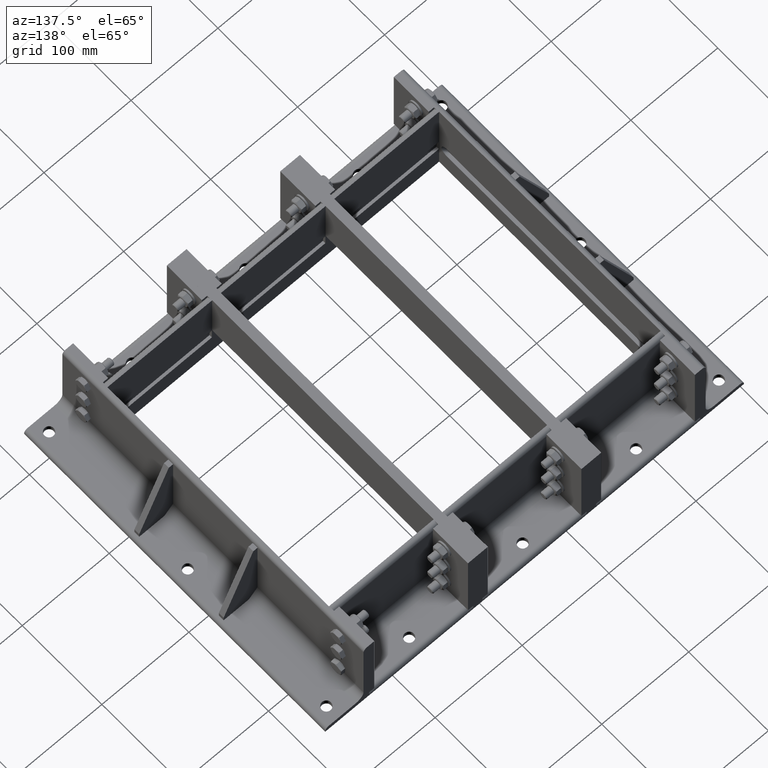
[diagram: clean part render]
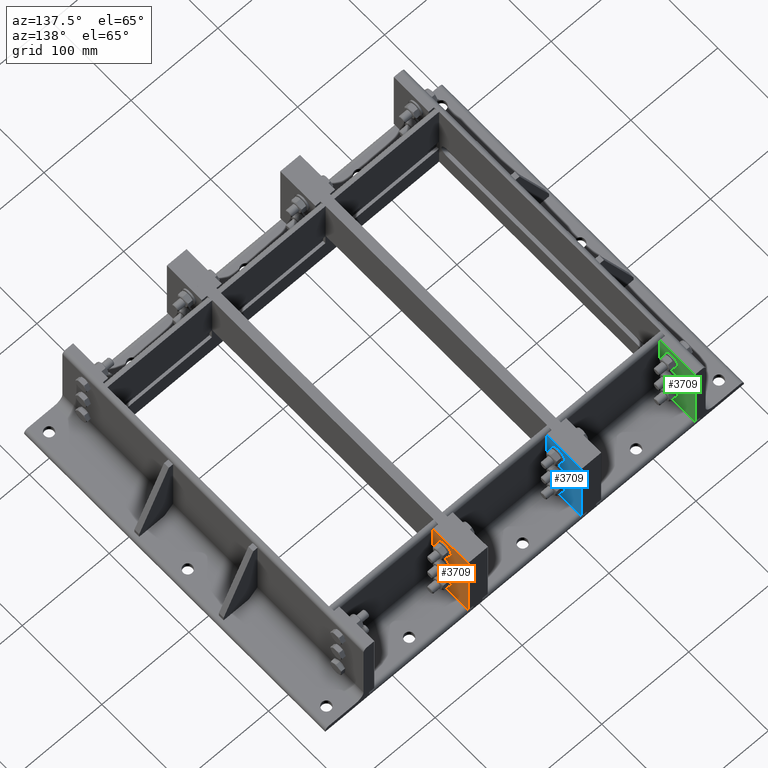
[diagram: same view with three faces highlighted in distinct colors, each labeled with its STEP entity id]
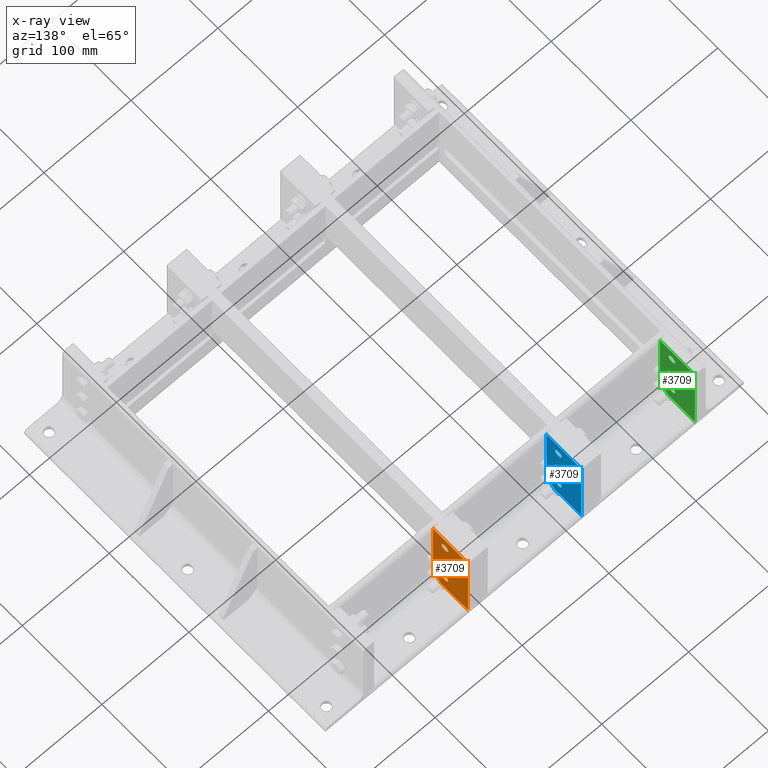
[diagram: x-ray of the same camera — body ghosted, the three highlighted faces saturated]
A machine part, auxiliary view with three faces highlighted in distinct colors.
The next image is the same camera in x-ray (body ghosted, the three faces saturated) — at least one of them is partly hidden behind the body in this view.
Their STEP definitions:

[orange] entity #3709 — the highlighted planar face has unit normal (1, -0, -0).
#3432=CARTESIAN_POINT('',(6.250000000000007,0.0,7.000000000000004));
#3433=VERTEX_POINT('',#3432);
#3434=CARTESIAN_POINT('',(2.000000000000006,0.0,7.000000000000004));
#3435=DIRECTION('',(0.0,1.0,0.0));
#3436=DIRECTION('',(-1.0,0.0,0.0));
#3437=AXIS2_PLACEMENT_3D('',#3434,#3435,#3436);
#3438=CIRCLE('',#3437,4.25);
#3439=EDGE_CURVE('',#3433,#3433,#3438,.T.);
#3460=CARTESIAN_POINT('',(-23.749999999999993,-1.110223E-015,7.000000000000002));
#3461=VERTEX_POINT('',#3460);
#3462=CARTESIAN_POINT('',(-27.999999999999993,0.0,7.000000000000002));
#3463=DIRECTION('',(0.0,1.0,0.0));
#3464=DIRECTION('',(-1.0,0.0,0.0));
#3465=AXIS2_PLACEMENT_3D('',#3462,#3463,#3464);
#3466=CIRCLE('',#3465,4.250000000000001);
#3467=EDGE_CURVE('',#3461,#3461,#3466,.T.);
#3488=CARTESIAN_POINT('',(36.250000000000007,2.220446E-015,7.000000000000004));
#3489=VERTEX_POINT('',#3488);
#3490=CARTESIAN_POINT('',(32.000000000000007,0.0,7.000000000000004));
#3491=DIRECTION('',(0.0,1.0,0.0));
#3492=DIRECTION('',(-1.0,0.0,0.0));
#3493=AXIS2_PLACEMENT_3D('',#3490,#3491,#3492);
#3494=CIRCLE('',#3493,4.25);
#3495=EDGE_CURVE('',#3489,#3489,#3494,.T.);
#3526=CARTESIAN_POINT('',(-46.999999999999993,0.0,12.000000000000002));
#3527=VERTEX_POINT('',#3526);
#3534=CARTESIAN_POINT('',(-36.999999999999993,0.0,22.0));
#3535=VERTEX_POINT('',#3534);
#3536=CARTESIAN_POINT('',(-46.999999999999993,-2.609024E-015,11.999999999999995));
#3537=DIRECTION('',(0.707106781186548,3.925231E-017,0.707106781186547));
#3538=VECTOR('',#3537,14.142135623730956);
#3539=LINE('',#3536,#3538);
#3540=EDGE_CURVE('',#3527,#3535,#3539,.T.);
#3605=CARTESIAN_POINT('',(47.000000000000014,0.0,22.0));
#3606=VERTEX_POINT('',#3605);
#3607=CARTESIAN_POINT('',(47.000000000000014,0.0,22.0));
#3608=DIRECTION('',(-1.0,0.0,0.0));
#3609=VECTOR('',#3608,84.0);
#3610=LINE('',#3607,#3609);
#3611=EDGE_CURVE('',#3606,#3535,#3610,.T.);
#3630=CARTESIAN_POINT('',(-47.000000000000014,0.0,-21.999999999999996));
#3631=VERTEX_POINT('',#3630);
#3638=CARTESIAN_POINT('',(-47.0,0.0,12.0));
#3639=DIRECTION('',(0.0,0.0,-1.0));
#3640=VECTOR('',#3639,34.0);
#3641=LINE('',#3638,#3640);
#3642=EDGE_CURVE('',#3527,#3631,#3641,.T.);
#3652=CARTESIAN_POINT('',(46.999999999999993,0.0,-22.000000000000011));
#3653=VERTEX_POINT('',#3652);
#3654=CARTESIAN_POINT('',(-47.000000000000014,0.0,-21.999999999999996));
#3655=DIRECTION('',(1.0,0.0,0.0));
#3656=VECTOR('',#3655,94.0);
#3657=LINE('',#3654,#3656);
#3658=EDGE_CURVE('',#3631,#3653,#3657,.T.);
#3676=CARTESIAN_POINT('',(46.999999999999993,0.0,-22.000000000000011));
#3677=DIRECTION('',(0.0,0.0,1.0));
#3678=VECTOR('',#3677,44.000000000000014);
#3679=LINE('',#3676,#3678);
#3680=EDGE_CURVE('',#3653,#3606,#3679,.T.);
#3688=CARTESIAN_POINT('',(9.654113E-016,0.0,-7.079683E-016));
#3689=DIRECTION('',(0.0,-1.0,0.0));
#3690=DIRECTION('',(0.0,0.0,-1.0));
#3691=AXIS2_PLACEMENT_3D('',#3688,#3689,#3690);
#3692=PLANE('',#3691);
#3693=ORIENTED_EDGE('',*,*,#3540,.F.);
#3694=ORIENTED_EDGE('',*,*,#3642,.T.);
#3695=ORIENTED_EDGE('',*,*,#3658,.T.);
#3696=ORIENTED_EDGE('',*,*,#3680,.T.);
#3697=ORIENTED_EDGE('',*,*,#3611,.T.);
#3698=EDGE_LOOP('',(#3693,#3694,#3695,#3696,#3697));
#3699=FACE_OUTER_BOUND('',#3698,.T.);
#3700=ORIENTED_EDGE('',*,*,#3439,.T.);
#3701=EDGE_LOOP('',(#3700));
#3702=FACE_BOUND('',#3701,.T.);
#3703=ORIENTED_EDGE('',*,*,#3467,.T.);
#3704=EDGE_LOOP('',(#3703));
#3705=FACE_BOUND('',#3704,.T.);
#3706=ORIENTED_EDGE('',*,*,#3495,.T.);
#3707=EDGE_LOOP('',(#3706));
#3708=FACE_BOUND('',#3707,.T.);
#3709=ADVANCED_FACE('',(#3699,#3702,#3705,#3708),#3692,.T.);

[blue] entity #3709 — the highlighted planar face has unit normal (1, -0, -0).
#3432=CARTESIAN_POINT('',(6.250000000000007,0.0,7.000000000000004));
#3433=VERTEX_POINT('',#3432);
#3434=CARTESIAN_POINT('',(2.000000000000006,0.0,7.000000000000004));
#3435=DIRECTION('',(0.0,1.0,0.0));
#3436=DIRECTION('',(-1.0,0.0,0.0));
#3437=AXIS2_PLACEMENT_3D('',#3434,#3435,#3436);
#3438=CIRCLE('',#3437,4.25);
#3439=EDGE_CURVE('',#3433,#3433,#3438,.T.);
#3460=CARTESIAN_POINT('',(-23.749999999999993,-1.110223E-015,7.000000000000002));
#3461=VERTEX_POINT('',#3460);
#3462=CARTESIAN_POINT('',(-27.999999999999993,0.0,7.000000000000002));
#3463=DIRECTION('',(0.0,1.0,0.0));
#3464=DIRECTION('',(-1.0,0.0,0.0));
#3465=AXIS2_PLACEMENT_3D('',#3462,#3463,#3464);
#3466=CIRCLE('',#3465,4.250000000000001);
#3467=EDGE_CURVE('',#3461,#3461,#3466,.T.);
#3488=CARTESIAN_POINT('',(36.250000000000007,2.220446E-015,7.000000000000004));
#3489=VERTEX_POINT('',#3488);
#3490=CARTESIAN_POINT('',(32.000000000000007,0.0,7.000000000000004));
#3491=DIRECTION('',(0.0,1.0,0.0));
#3492=DIRECTION('',(-1.0,0.0,0.0));
#3493=AXIS2_PLACEMENT_3D('',#3490,#3491,#3492);
#3494=CIRCLE('',#3493,4.25);
#3495=EDGE_CURVE('',#3489,#3489,#3494,.T.);
#3526=CARTESIAN_POINT('',(-46.999999999999993,0.0,12.000000000000002));
#3527=VERTEX_POINT('',#3526);
#3534=CARTESIAN_POINT('',(-36.999999999999993,0.0,22.0));
#3535=VERTEX_POINT('',#3534);
#3536=CARTESIAN_POINT('',(-46.999999999999993,-2.609024E-015,11.999999999999995));
#3537=DIRECTION('',(0.707106781186548,3.925231E-017,0.707106781186547));
#3538=VECTOR('',#3537,14.142135623730956);
#3539=LINE('',#3536,#3538);
#3540=EDGE_CURVE('',#3527,#3535,#3539,.T.);
#3605=CARTESIAN_POINT('',(47.000000000000014,0.0,22.0));
#3606=VERTEX_POINT('',#3605);
#3607=CARTESIAN_POINT('',(47.000000000000014,0.0,22.0));
#3608=DIRECTION('',(-1.0,0.0,0.0));
#3609=VECTOR('',#3608,84.0);
#3610=LINE('',#3607,#3609);
#3611=EDGE_CURVE('',#3606,#3535,#3610,.T.);
#3630=CARTESIAN_POINT('',(-47.000000000000014,0.0,-21.999999999999996));
#3631=VERTEX_POINT('',#3630);
#3638=CARTESIAN_POINT('',(-47.0,0.0,12.0));
#3639=DIRECTION('',(0.0,0.0,-1.0));
#3640=VECTOR('',#3639,34.0);
#3641=LINE('',#3638,#3640);
#3642=EDGE_CURVE('',#3527,#3631,#3641,.T.);
#3652=CARTESIAN_POINT('',(46.999999999999993,0.0,-22.000000000000011));
#3653=VERTEX_POINT('',#3652);
#3654=CARTESIAN_POINT('',(-47.000000000000014,0.0,-21.999999999999996));
#3655=DIRECTION('',(1.0,0.0,0.0));
#3656=VECTOR('',#3655,94.0);
#3657=LINE('',#3654,#3656);
#3658=EDGE_CURVE('',#3631,#3653,#3657,.T.);
#3676=CARTESIAN_POINT('',(46.999999999999993,0.0,-22.000000000000011));
#3677=DIRECTION('',(0.0,0.0,1.0));
#3678=VECTOR('',#3677,44.000000000000014);
#3679=LINE('',#3676,#3678);
#3680=EDGE_CURVE('',#3653,#3606,#3679,.T.);
#3688=CARTESIAN_POINT('',(9.654113E-016,0.0,-7.079683E-016));
#3689=DIRECTION('',(0.0,-1.0,0.0));
#3690=DIRECTION('',(0.0,0.0,-1.0));
#3691=AXIS2_PLACEMENT_3D('',#3688,#3689,#3690);
#3692=PLANE('',#3691);
#3693=ORIENTED_EDGE('',*,*,#3540,.F.);
#3694=ORIENTED_EDGE('',*,*,#3642,.T.);
#3695=ORIENTED_EDGE('',*,*,#3658,.T.);
#3696=ORIENTED_EDGE('',*,*,#3680,.T.);
#3697=ORIENTED_EDGE('',*,*,#3611,.T.);
#3698=EDGE_LOOP('',(#3693,#3694,#3695,#3696,#3697));
#3699=FACE_OUTER_BOUND('',#3698,.T.);
#3700=ORIENTED_EDGE('',*,*,#3439,.T.);
#3701=EDGE_LOOP('',(#3700));
#3702=FACE_BOUND('',#3701,.T.);
#3703=ORIENTED_EDGE('',*,*,#3467,.T.);
#3704=EDGE_LOOP('',(#3703));
#3705=FACE_BOUND('',#3704,.T.);
#3706=ORIENTED_EDGE('',*,*,#3495,.T.);
#3707=EDGE_LOOP('',(#3706));
#3708=FACE_BOUND('',#3707,.T.);
#3709=ADVANCED_FACE('',(#3699,#3702,#3705,#3708),#3692,.T.);

[green] entity #3709 — the highlighted planar face has unit normal (1, -0, -0).
#3432=CARTESIAN_POINT('',(6.250000000000007,0.0,7.000000000000004));
#3433=VERTEX_POINT('',#3432);
#3434=CARTESIAN_POINT('',(2.000000000000006,0.0,7.000000000000004));
#3435=DIRECTION('',(0.0,1.0,0.0));
#3436=DIRECTION('',(-1.0,0.0,0.0));
#3437=AXIS2_PLACEMENT_3D('',#3434,#3435,#3436);
#3438=CIRCLE('',#3437,4.25);
#3439=EDGE_CURVE('',#3433,#3433,#3438,.T.);
#3460=CARTESIAN_POINT('',(-23.749999999999993,-1.110223E-015,7.000000000000002));
#3461=VERTEX_POINT('',#3460);
#3462=CARTESIAN_POINT('',(-27.999999999999993,0.0,7.000000000000002));
#3463=DIRECTION('',(0.0,1.0,0.0));
#3464=DIRECTION('',(-1.0,0.0,0.0));
#3465=AXIS2_PLACEMENT_3D('',#3462,#3463,#3464);
#3466=CIRCLE('',#3465,4.250000000000001);
#3467=EDGE_CURVE('',#3461,#3461,#3466,.T.);
#3488=CARTESIAN_POINT('',(36.250000000000007,2.220446E-015,7.000000000000004));
#3489=VERTEX_POINT('',#3488);
#3490=CARTESIAN_POINT('',(32.000000000000007,0.0,7.000000000000004));
#3491=DIRECTION('',(0.0,1.0,0.0));
#3492=DIRECTION('',(-1.0,0.0,0.0));
#3493=AXIS2_PLACEMENT_3D('',#3490,#3491,#3492);
#3494=CIRCLE('',#3493,4.25);
#3495=EDGE_CURVE('',#3489,#3489,#3494,.T.);
#3526=CARTESIAN_POINT('',(-46.999999999999993,0.0,12.000000000000002));
#3527=VERTEX_POINT('',#3526);
#3534=CARTESIAN_POINT('',(-36.999999999999993,0.0,22.0));
#3535=VERTEX_POINT('',#3534);
#3536=CARTESIAN_POINT('',(-46.999999999999993,-2.609024E-015,11.999999999999995));
#3537=DIRECTION('',(0.707106781186548,3.925231E-017,0.707106781186547));
#3538=VECTOR('',#3537,14.142135623730956);
#3539=LINE('',#3536,#3538);
#3540=EDGE_CURVE('',#3527,#3535,#3539,.T.);
#3605=CARTESIAN_POINT('',(47.000000000000014,0.0,22.0));
#3606=VERTEX_POINT('',#3605);
#3607=CARTESIAN_POINT('',(47.000000000000014,0.0,22.0));
#3608=DIRECTION('',(-1.0,0.0,0.0));
#3609=VECTOR('',#3608,84.0);
#3610=LINE('',#3607,#3609);
#3611=EDGE_CURVE('',#3606,#3535,#3610,.T.);
#3630=CARTESIAN_POINT('',(-47.000000000000014,0.0,-21.999999999999996));
#3631=VERTEX_POINT('',#3630);
#3638=CARTESIAN_POINT('',(-47.0,0.0,12.0));
#3639=DIRECTION('',(0.0,0.0,-1.0));
#3640=VECTOR('',#3639,34.0);
#3641=LINE('',#3638,#3640);
#3642=EDGE_CURVE('',#3527,#3631,#3641,.T.);
#3652=CARTESIAN_POINT('',(46.999999999999993,0.0,-22.000000000000011));
#3653=VERTEX_POINT('',#3652);
#3654=CARTESIAN_POINT('',(-47.000000000000014,0.0,-21.999999999999996));
#3655=DIRECTION('',(1.0,0.0,0.0));
#3656=VECTOR('',#3655,94.0);
#3657=LINE('',#3654,#3656);
#3658=EDGE_CURVE('',#3631,#3653,#3657,.T.);
#3676=CARTESIAN_POINT('',(46.999999999999993,0.0,-22.000000000000011));
#3677=DIRECTION('',(0.0,0.0,1.0));
#3678=VECTOR('',#3677,44.000000000000014);
#3679=LINE('',#3676,#3678);
#3680=EDGE_CURVE('',#3653,#3606,#3679,.T.);
#3688=CARTESIAN_POINT('',(9.654113E-016,0.0,-7.079683E-016));
#3689=DIRECTION('',(0.0,-1.0,0.0));
#3690=DIRECTION('',(0.0,0.0,-1.0));
#3691=AXIS2_PLACEMENT_3D('',#3688,#3689,#3690);
#3692=PLANE('',#3691);
#3693=ORIENTED_EDGE('',*,*,#3540,.F.);
#3694=ORIENTED_EDGE('',*,*,#3642,.T.);
#3695=ORIENTED_EDGE('',*,*,#3658,.T.);
#3696=ORIENTED_EDGE('',*,*,#3680,.T.);
#3697=ORIENTED_EDGE('',*,*,#3611,.T.);
#3698=EDGE_LOOP('',(#3693,#3694,#3695,#3696,#3697));
#3699=FACE_OUTER_BOUND('',#3698,.T.);
#3700=ORIENTED_EDGE('',*,*,#3439,.T.);
#3701=EDGE_LOOP('',(#3700));
#3702=FACE_BOUND('',#3701,.T.);
#3703=ORIENTED_EDGE('',*,*,#3467,.T.);
#3704=EDGE_LOOP('',(#3703));
#3705=FACE_BOUND('',#3704,.T.);
#3706=ORIENTED_EDGE('',*,*,#3495,.T.);
#3707=EDGE_LOOP('',(#3706));
#3708=FACE_BOUND('',#3707,.T.);
#3709=ADVANCED_FACE('',(#3699,#3702,#3705,#3708),#3692,.T.);